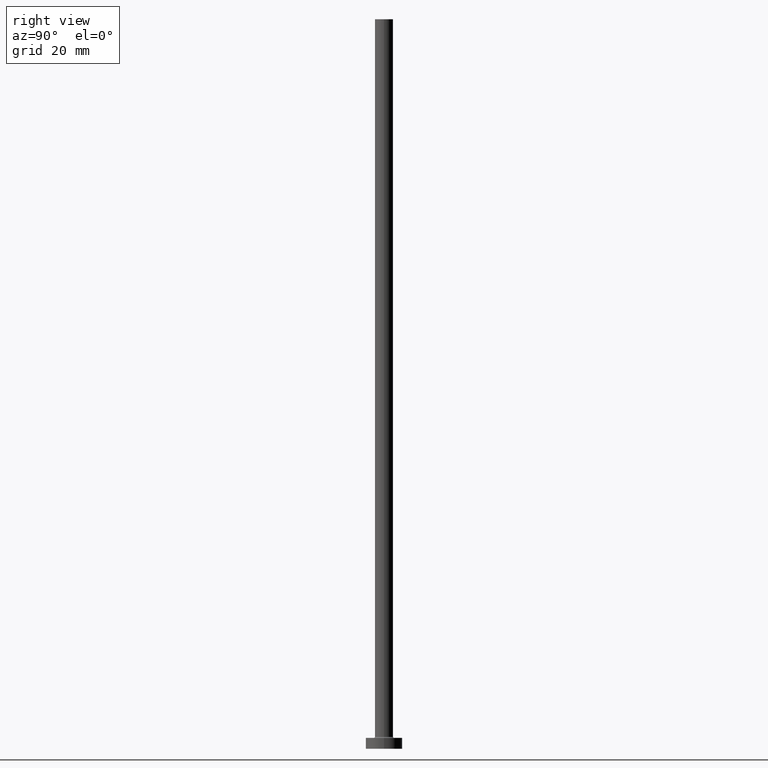
[diagram: clean part render]
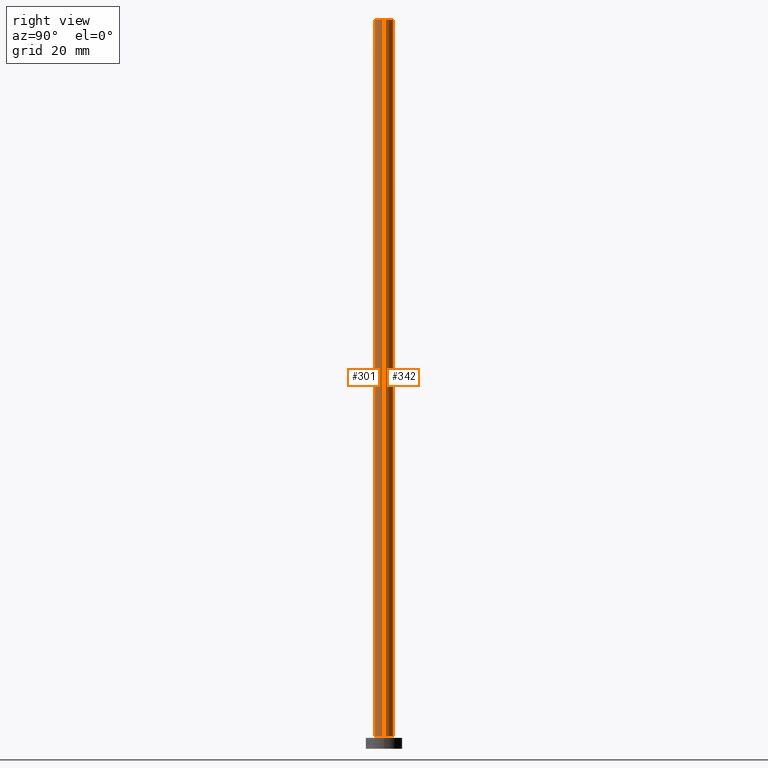
[diagram: same view with one multi-face feature highlighted, each face labeled with its STEP entity id]
A machine part, right view. The highlighted faces form ONE feature: a constant-radius fillet chain: 2 tangent blend faces with common blend radius 2.5 mm. The faces share edges in the B-rep.
Their STEP definitions:
[1] entity #342 (Cylinder):
#25 = LINE ( 'NONE', #354, #329 ) ;
#30 = CARTESIAN_POINT ( 'NONE',  ( -2.500000000000000000, 0.000000000000000000, 3.299999999999997158 ) ) ;
#68 = VERTEX_POINT ( 'NONE', #235 ) ;
#88 = CARTESIAN_POINT ( 'NONE',  ( 0.000000000000000000, 0.000000000000000000, 3.299999999999997158 ) ) ;
#92 = DIRECTION ( 'NONE',  ( 0.000000000000000000, 0.000000000000000000, 1.000000000000000000 ) ) ;
#103 = FACE_OUTER_BOUND ( 'NONE', #459, .T. ) ;
#134 = CARTESIAN_POINT ( 'NONE',  ( 2.500000000000000000, 3.061616997868383141E-16, 200.0000000000000000 ) ) ;
#139 = VERTEX_POINT ( 'NONE', #291 ) ;
#145 = AXIS2_PLACEMENT_3D ( 'NONE', #203, #386, #389 ) ;
#164 = EDGE_CURVE ( 'NONE', #362, #68, #205, .T. ) ;
#170 = DIRECTION ( 'NONE',  ( -0.000000000000000000, -0.000000000000000000, -1.000000000000000000 ) ) ;
#182 = CARTESIAN_POINT ( 'NONE',  ( 0.000000000000000000, 0.000000000000000000, 200.0000000000000000 ) ) ;
#200 = ORIENTED_EDGE ( 'NONE', *, *, #164, .F. ) ;
#201 = CYLINDRICAL_SURFACE ( 'NONE', #145, 2.500000000000000000 ) ;
#203 = CARTESIAN_POINT ( 'NONE',  ( 0.000000000000000000, 0.000000000000000000, 200.0000000000000000 ) ) ;
#205 = CIRCLE ( 'NONE', #238, 2.500000000000000000 ) ;
#211 = CIRCLE ( 'NONE', #417, 2.500000000000000000 ) ;
#235 = CARTESIAN_POINT ( 'NONE',  ( -2.500000000000000000, 0.000000000000000000, 200.0000000000000000 ) ) ;
#238 = AXIS2_PLACEMENT_3D ( 'NONE', #182, #397, #402 ) ;
#254 = ORIENTED_EDGE ( 'NONE', *, *, #350, .F. ) ;
#285 = EDGE_CURVE ( 'NONE', #139, #304, #211, .T. ) ;
#289 = CARTESIAN_POINT ( 'NONE',  ( 2.500000000000000000, 3.061616997868383141E-16, 200.0000000000000000 ) ) ;
#291 = CARTESIAN_POINT ( 'NONE',  ( 2.500000000000000000, 3.061616997868383141E-16, 3.299999999999997158 ) ) ;
#304 = VERTEX_POINT ( 'NONE', #30 ) ;
#315 = VECTOR ( 'NONE', #328, 1000.000000000000000 ) ;
#318 = LINE ( 'NONE', #134, #315 ) ;
#322 = DIRECTION ( 'NONE',  ( 1.000000000000000000, 0.000000000000000000, 0.000000000000000000 ) ) ;
#325 = ORIENTED_EDGE ( 'NONE', *, *, #285, .T. ) ;
#328 = DIRECTION ( 'NONE',  ( -0.000000000000000000, -0.000000000000000000, -1.000000000000000000 ) ) ;
#329 = VECTOR ( 'NONE', #170, 1000.000000000000000 ) ;
#342 = ADVANCED_FACE ( 'NONE', ( #103 ), #201, .T. ) ;
#350 = EDGE_CURVE ( 'NONE', #68, #304, #25, .T. ) ;
#354 = CARTESIAN_POINT ( 'NONE',  ( -2.500000000000000000, 0.000000000000000000, 200.0000000000000000 ) ) ;
#358 = EDGE_CURVE ( 'NONE', #362, #139, #318, .T. ) ;
#362 = VERTEX_POINT ( 'NONE', #289 ) ;
#386 = DIRECTION ( 'NONE',  ( -0.000000000000000000, -0.000000000000000000, -1.000000000000000000 ) ) ;
#389 = DIRECTION ( 'NONE',  ( -1.000000000000000000, 0.000000000000000000, 0.000000000000000000 ) ) ;
#397 = DIRECTION ( 'NONE',  ( 0.000000000000000000, 0.000000000000000000, 1.000000000000000000 ) ) ;
#400 = ORIENTED_EDGE ( 'NONE', *, *, #358, .T. ) ;
#402 = DIRECTION ( 'NONE',  ( 1.000000000000000000, 0.000000000000000000, 0.000000000000000000 ) ) ;
#417 = AXIS2_PLACEMENT_3D ( 'NONE', #88, #92, #322 ) ;
#459 = EDGE_LOOP ( 'NONE', ( #200, #400, #325, #254 ) ) ;
[2] entity #301 (Cylinder):
#9 = AXIS2_PLACEMENT_3D ( 'NONE', #206, #415, #131 ) ;
#25 = LINE ( 'NONE', #354, #329 ) ;
#30 = CARTESIAN_POINT ( 'NONE',  ( -2.500000000000000000, 0.000000000000000000, 3.299999999999997158 ) ) ;
#46 = CIRCLE ( 'NONE', #136, 2.500000000000000000 ) ;
#52 = DIRECTION ( 'NONE',  ( 0.000000000000000000, 0.000000000000000000, 1.000000000000000000 ) ) ;
#68 = VERTEX_POINT ( 'NONE', #235 ) ;
#110 = CIRCLE ( 'NONE', #183, 2.500000000000000000 ) ;
#115 = ORIENTED_EDGE ( 'NONE', *, *, #358, .F. ) ;
#123 = DIRECTION ( 'NONE',  ( 1.000000000000000000, 0.000000000000000000, 0.000000000000000000 ) ) ;
#131 = DIRECTION ( 'NONE',  ( -1.000000000000000000, 0.000000000000000000, 0.000000000000000000 ) ) ;
#134 = CARTESIAN_POINT ( 'NONE',  ( 2.500000000000000000, 3.061616997868383141E-16, 200.0000000000000000 ) ) ;
#136 = AXIS2_PLACEMENT_3D ( 'NONE', #223, #157, #123 ) ;
#139 = VERTEX_POINT ( 'NONE', #291 ) ;
#157 = DIRECTION ( 'NONE',  ( 0.000000000000000000, 0.000000000000000000, 1.000000000000000000 ) ) ;
#167 = CYLINDRICAL_SURFACE ( 'NONE', #9, 2.500000000000000000 ) ;
#170 = DIRECTION ( 'NONE',  ( -0.000000000000000000, -0.000000000000000000, -1.000000000000000000 ) ) ;
#173 = FACE_OUTER_BOUND ( 'NONE', #210, .T. ) ;
#183 = AXIS2_PLACEMENT_3D ( 'NONE', #375, #52, #379 ) ;
#204 = EDGE_CURVE ( 'NONE', #304, #139, #110, .T. ) ;
#206 = CARTESIAN_POINT ( 'NONE',  ( 0.000000000000000000, 0.000000000000000000, 200.0000000000000000 ) ) ;
#210 = EDGE_LOOP ( 'NONE', ( #115, #394, #288, #242 ) ) ;
#223 = CARTESIAN_POINT ( 'NONE',  ( 0.000000000000000000, 0.000000000000000000, 200.0000000000000000 ) ) ;
#235 = CARTESIAN_POINT ( 'NONE',  ( -2.500000000000000000, 0.000000000000000000, 200.0000000000000000 ) ) ;
#242 = ORIENTED_EDGE ( 'NONE', *, *, #204, .T. ) ;
#258 = EDGE_CURVE ( 'NONE', #68, #362, #46, .T. ) ;
#288 = ORIENTED_EDGE ( 'NONE', *, *, #350, .T. ) ;
#289 = CARTESIAN_POINT ( 'NONE',  ( 2.500000000000000000, 3.061616997868383141E-16, 200.0000000000000000 ) ) ;
#291 = CARTESIAN_POINT ( 'NONE',  ( 2.500000000000000000, 3.061616997868383141E-16, 3.299999999999997158 ) ) ;
#301 = ADVANCED_FACE ( 'NONE', ( #173 ), #167, .T. ) ;
#304 = VERTEX_POINT ( 'NONE', #30 ) ;
#315 = VECTOR ( 'NONE', #328, 1000.000000000000000 ) ;
#318 = LINE ( 'NONE', #134, #315 ) ;
#328 = DIRECTION ( 'NONE',  ( -0.000000000000000000, -0.000000000000000000, -1.000000000000000000 ) ) ;
#329 = VECTOR ( 'NONE', #170, 1000.000000000000000 ) ;
#350 = EDGE_CURVE ( 'NONE', #68, #304, #25, .T. ) ;
#354 = CARTESIAN_POINT ( 'NONE',  ( -2.500000000000000000, 0.000000000000000000, 200.0000000000000000 ) ) ;
#358 = EDGE_CURVE ( 'NONE', #362, #139, #318, .T. ) ;
#362 = VERTEX_POINT ( 'NONE', #289 ) ;
#375 = CARTESIAN_POINT ( 'NONE',  ( 0.000000000000000000, 0.000000000000000000, 3.299999999999997158 ) ) ;
#379 = DIRECTION ( 'NONE',  ( 1.000000000000000000, 0.000000000000000000, 0.000000000000000000 ) ) ;
#394 = ORIENTED_EDGE ( 'NONE', *, *, #258, .F. ) ;
#415 = DIRECTION ( 'NONE',  ( -0.000000000000000000, -0.000000000000000000, -1.000000000000000000 ) ) ;